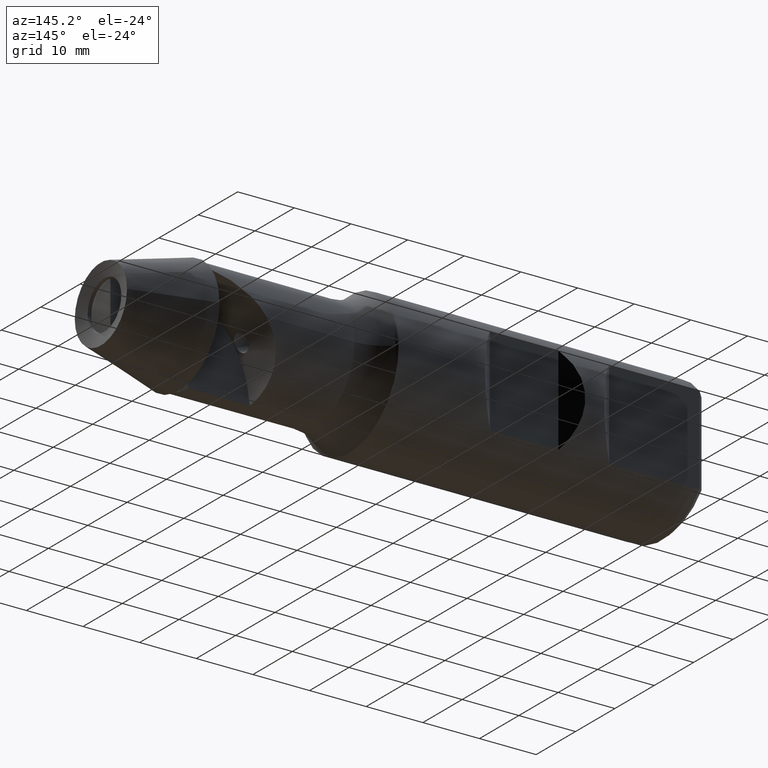
[diagram: clean part render]
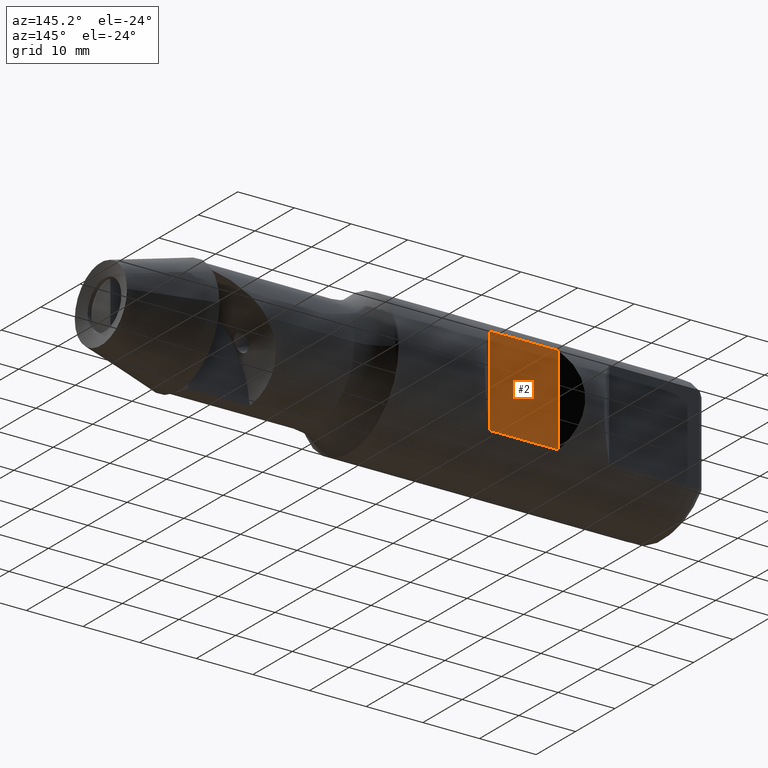
[diagram: same view with one face highlighted and labeled with its STEP entity id]
A machine part, auxiliary view. The second image highlights one B-rep face of the part: STEP entity #2.
In plain terms, the highlighted planar face has unit normal (0, 1, 0).
Its self-contained STEP definition (entity closure, byte-faithful):
#2 = ADVANCED_FACE ( 'NONE', ( #628 ), #1023, .T. ) ;
#87 = EDGE_CURVE ( 'NONE', #199, #1040, #1329, .T. ) ;
#165 = DIRECTION ( 'NONE',  ( 0.0000000000000000000, 0.0000000000000000000, -1.000000000000000000 ) ) ;
#166 = EDGE_CURVE ( 'NONE', #782, #199, #1016, .T. ) ;
#195 = VECTOR ( 'NONE', #165, 1000.000000000000000 ) ;
#199 = VERTEX_POINT ( 'NONE', #454 ) ;
#203 = CARTESIAN_POINT ( 'NONE',  ( -66.44999999999998900, 9.699999999999990400, -7.884161337770806600 ) ) ;
#217 = VECTOR ( 'NONE', #431, 1000.000000000000000 ) ;
#256 = VECTOR ( 'NONE', #1272, 1000.000000000000000 ) ;
#417 = LINE ( 'NONE', #1260, #1108 ) ;
#431 = DIRECTION ( 'NONE',  ( 0.0000000000000000000, 0.0000000000000000000, -1.000000000000000000 ) ) ;
#437 = LINE ( 'NONE', #827, #217 ) ;
#454 = CARTESIAN_POINT ( 'NONE',  ( -78.54999999999999700, 9.699999999999979700, -7.884161337770830600 ) ) ;
#474 = AXIS2_PLACEMENT_3D ( 'NONE', #1280, #1349, #591 ) ;
#522 = ORIENTED_EDGE ( 'NONE', *, *, #87, .F. ) ;
#591 = DIRECTION ( 'NONE',  ( 0.0000000000000000000, -0.0000000000000000000, 1.000000000000000000 ) ) ;
#628 = FACE_OUTER_BOUND ( 'NONE', #898, .T. ) ;
#652 = VERTEX_POINT ( 'NONE', #881 ) ;
#655 = CARTESIAN_POINT ( 'NONE',  ( -78.54999999999999700, 9.699999999999990400, 10.00000000000000000 ) ) ;
#732 = ORIENTED_EDGE ( 'NONE', *, *, #937, .F. ) ;
#782 = VERTEX_POINT ( 'NONE', #1231 ) ;
#827 = CARTESIAN_POINT ( 'NONE',  ( -66.44999999999998900, 9.699999999999990400, 10.00000000000000000 ) ) ;
#881 = CARTESIAN_POINT ( 'NONE',  ( -66.44999999999998900, 9.699999999999990400, 7.884161337770812000 ) ) ;
#898 = EDGE_LOOP ( 'NONE', ( #732, #931, #522, #1113 ) ) ;
#931 = ORIENTED_EDGE ( 'NONE', *, *, #1193, .T. ) ;
#937 = EDGE_CURVE ( 'NONE', #652, #782, #417, .T. ) ;
#1016 = LINE ( 'NONE', #655, #195 ) ;
#1023 = PLANE ( 'NONE',  #474 ) ;
#1040 = VERTEX_POINT ( 'NONE', #203 ) ;
#1079 = CARTESIAN_POINT ( 'NONE',  ( 0.0000000000000000000, 9.699999999999990400, -7.884161337770830600 ) ) ;
#1108 = VECTOR ( 'NONE', #1355, 1000.000000000000000 ) ;
#1113 = ORIENTED_EDGE ( 'NONE', *, *, #166, .F. ) ;
#1193 = EDGE_CURVE ( 'NONE', #652, #1040, #437, .T. ) ;
#1231 = CARTESIAN_POINT ( 'NONE',  ( -78.54999999999999700, 9.699999999999979700, 7.884161337770830600 ) ) ;
#1260 = CARTESIAN_POINT ( 'NONE',  ( 0.0000000000000000000, 9.699999999999990400, 7.884161337770830600 ) ) ;
#1272 = DIRECTION ( 'NONE',  ( 1.000000000000000000, 1.331952470251674600E-016, -0.0000000000000000000 ) ) ;
#1280 = CARTESIAN_POINT ( 'NONE',  ( -66.44999999999998900, 9.699999999999990400, 10.00000000000000000 ) ) ;
#1329 = LINE ( 'NONE', #1079, #256 ) ;
#1349 = DIRECTION ( 'NONE',  ( 0.0000000000000000000, 1.000000000000000000, 0.0000000000000000000 ) ) ;
#1355 = DIRECTION ( 'NONE',  ( -1.000000000000000000, -1.331952470251674600E-016, 0.0000000000000000000 ) ) ;